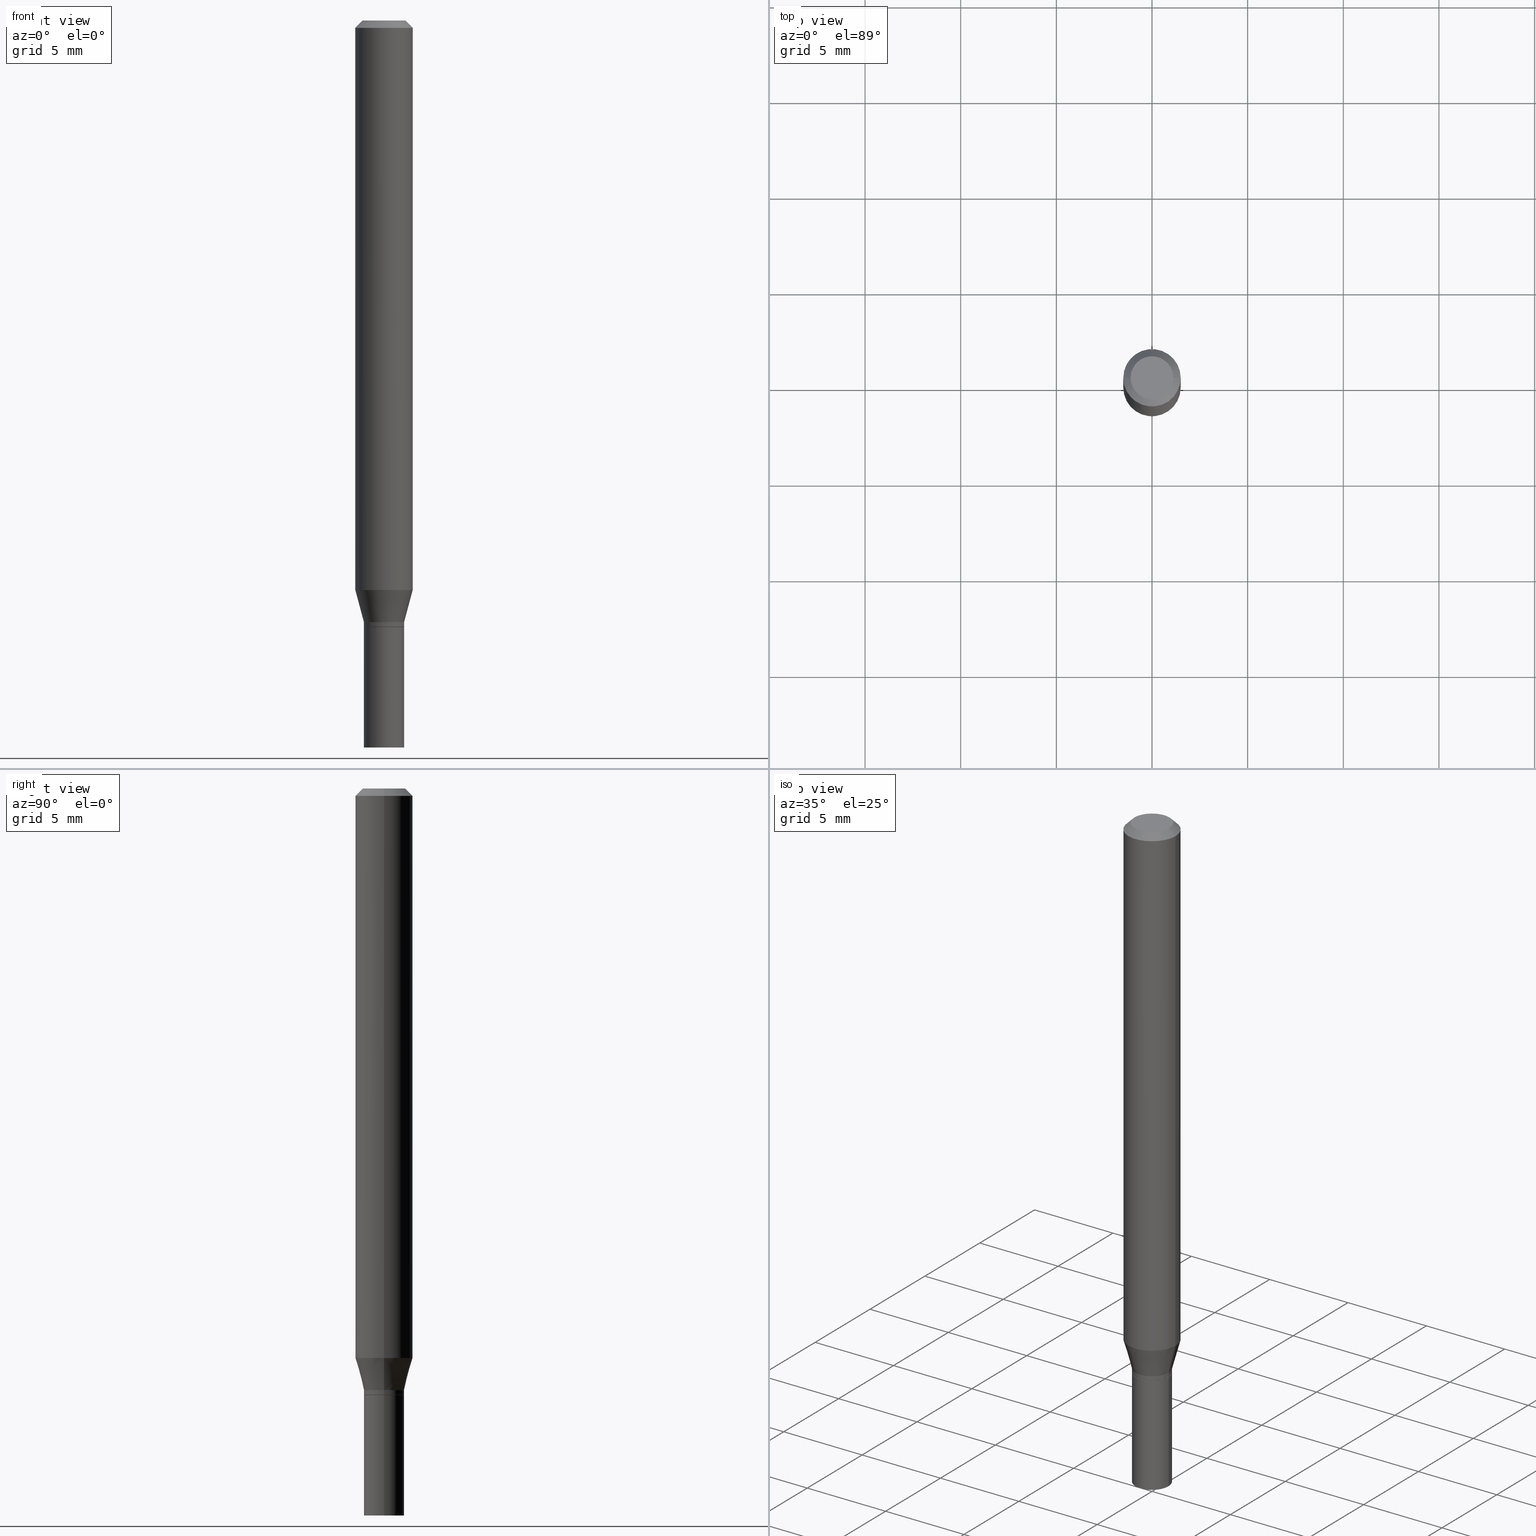
[diagram: canonical four-view strip — front | top / right | iso, engineering-drawing reading convention]
A machine part, canonical four-view strip (front | top / right | iso — engineering-drawing reading convention). The complete STEP part file that produces these views, byte-faithful:
ISO-10303-21;
HEADER;
FILE_DESCRIPTION (( 'STEP AP203' ),
    '1' );
FILE_NAME ('01842.STEP',
    '2024-03-20T01:56:46',
    ( '' ),
    ( '' ),
    'SwSTEP 2.0',
    'SolidWorks 2023',
    '' );
FILE_SCHEMA (( 'CONFIG_CONTROL_DESIGN' ));
ENDSEC;

DATA;
#1 = CALENDAR_DATE ( 2024, 19, 3 ) ;
#2 = DIRECTION ( 'NONE',  ( -2.445468806185136877E-29, 3.491481338843145188E-15, 1.000000000000000000 ) ) ;
#3 = DATE_AND_TIME ( #257, #39 ) ;
#4 = DIRECTION ( 'NONE',  ( 1.000000000000000000, -6.982962677686261189E-15, 0.000000000000000000 ) ) ;
#5 = PERSON_AND_ORGANIZATION ( #77, #251 ) ;
#6 = CARTESIAN_POINT ( 'NONE',  ( 0.05904999999999999832, -4.647161662000212105E-16, -0.01499999999999999944 ) ) ;
#7 = APPROVAL_PERSON_ORGANIZATION ( #5, #463, #44 ) ;
#8 = DIRECTION ( 'NONE',  ( -2.445468806185136597E-29, 3.491481338843145583E-15, 1.000000000000000000 ) ) ;
#9 = DIRECTION ( 'NONE',  ( -2.445468806185136597E-29, 3.491481338843145583E-15, 1.000000000000000000 ) ) ;
#10 = EDGE_CURVE ( 'NONE', #382, #405, #178, .T. ) ;
#11 = LINE ( 'NONE', #161, #203 ) ;
#12 = ORIENTED_EDGE ( 'NONE', *, *, #408, .T. ) ;
#13 = CIRCLE ( 'NONE', #225, 0.04134999999999965092 ) ;
#14 = DIRECTION ( 'NONE',  ( -2.445468806185136597E-29, 3.491481338843145583E-15, 1.000000000000000000 ) ) ;
#15 = UNCERTAINTY_MEASURE_WITH_UNIT (LENGTH_MEASURE( 1.000000000000000082E-05 ), #103, 'distance_accuracy_value', 'NONE');
#16 = EDGE_LOOP ( 'NONE', ( #172, #270 ) ) ;
#17 = DIRECTION ( 'NONE',  ( -2.445468806185136877E-29, 3.491481338843145188E-15, 1.000000000000000000 ) ) ;
#18 = ORIENTED_EDGE ( 'NONE', *, *, #231, .F. ) ;
#19 = DIRECTION ( 'NONE',  ( 2.445468806185136597E-29, -3.491481338843145583E-15, -1.000000000000000000 ) ) ;
#20 = ORIENTED_EDGE ( 'NONE', *, *, #268, .F. ) ;
#21 = AXIS2_PLACEMENT_3D ( 'NONE', #123, #159, #303 ) ;
#22 = CARTESIAN_POINT ( 'NONE',  ( 2.887455067223576124E-16, 0.04134999999999564718, -1.248100000000000209 ) ) ;
#23 = DIRECTION ( 'NONE',  ( -2.445468806185136877E-29, 3.491481338843145188E-15, 1.000000000000000000 ) ) ;
#24 = DIRECTION ( 'NONE',  ( 0.2588190451025206840, 1.565188264969626504E-15, 0.9659258262890682012 ) ) ;
#25 = EDGE_CURVE ( 'NONE', #162, #201, #293, .T. ) ;
#26 = ORIENTED_EDGE ( 'NONE', *, *, #310, .T. ) ;
#27 = CONICAL_SURFACE ( 'NONE', #46, 0.05904999999999999832, 0.7853981633974458365 ) ;
#28 = AXIS2_PLACEMENT_3D ( 'NONE', #353, #175, #238 ) ;
#29 = ORIENTED_EDGE ( 'NONE', *, *, #427, .F. ) ;
#30 = ADVANCED_FACE ( 'NONE', ( #349 ), #449, .T. ) ;
#31 = PERSON_AND_ORGANIZATION ( #77, #251 ) ;
#32 = CARTESIAN_POINT ( 'NONE',  ( -0.05904999999999999832, 3.599717260347268549E-16, -0.01499999999999999944 ) ) ;
#33 = EDGE_CURVE ( 'NONE', #136, #134, #428, .T. ) ;
#34 = COORDINATED_UNIVERSAL_TIME_OFFSET ( 5, 0, .BEHIND. ) ;
#35 = CARTESIAN_POINT ( 'NONE',  ( 3.668203209277705088E-31, -5.237222008264718399E-17, -0.01499999999999999944 ) ) ;
#36 = CIRCLE ( 'NONE', #418, 0.04134999999999965092 ) ;
#37 = AXIS2_PLACEMENT_3D ( 'NONE', #149, #181, #291 ) ;
#38 = CARTESIAN_POINT ( 'NONE',  ( 0.000000000000000000, 0.000000000000000000, 0.000000000000000000 ) ) ;
#39 = LOCAL_TIME ( 21, 56, 46.00000000000000000, #325 ) ;
#40 = PERSON_AND_ORGANIZATION ( #77, #251 ) ;
#41 = DIRECTION ( 'NONE',  ( -2.445468806185136597E-29, 3.491481338843145583E-15, 1.000000000000000000 ) ) ;
#42 = DATE_TIME_ROLE ( 'classification_date' ) ;
#43 = DIRECTION ( 'NONE',  ( -2.445468806185136597E-29, 3.491481338843145583E-15, 1.000000000000000000 ) ) ;
#44 = APPROVAL_ROLE ( '' ) ;
#45 = DIRECTION ( 'NONE',  ( -2.445468806185136597E-29, 3.491481338843145583E-15, 1.000000000000000000 ) ) ;
#46 = AXIS2_PLACEMENT_3D ( 'NONE', #413, #195, #126 ) ;
#47 = EDGE_CURVE ( 'NONE', #335, #136, #387, .T. ) ;
#48 = CARTESIAN_POINT ( 'NONE',  ( -1.820608976435806183E-45, 2.599347106975407252E-31, 7.444826005676619610E-17 ) ) ;
#49 = FACE_OUTER_BOUND ( 'NONE', #16, .T. ) ;
#50 = ORIENTED_EDGE ( 'NONE', *, *, #67, .T. ) ;
#51 = FACE_OUTER_BOUND ( 'NONE', #284, .T. ) ;
#52 = VERTEX_POINT ( 'NONE', #454 ) ;
#53 = AXIS2_PLACEMENT_3D ( 'NONE', #296, #45, #434 ) ;
#54 = LINE ( 'NONE', #448, #345 ) ;
#55 = ORIENTED_EDGE ( 'NONE', *, *, #433, .F. ) ;
#56 = DIRECTION ( 'NONE',  ( -2.445468806185136597E-29, 3.491481338843145583E-15, 1.000000000000000000 ) ) ;
#57 = ORIENTED_EDGE ( 'NONE', *, *, #322, .T. ) ;
#58 = CALENDAR_DATE ( 2024, 19, 3 ) ;
#59 = ORIENTED_EDGE ( 'NONE', *, *, #33, .F. ) ;
#60 = CONICAL_SURFACE ( 'NONE', #300, 0.04084999999999999742, 0.7853981633974739252 ) ;
#61 = APPLICATION_PROTOCOL_DEFINITION ( 'international standard', 'config_control_design', 1994, #72 ) ;
#62 = ORIENTED_EDGE ( 'NONE', *, *, #33, .T. ) ;
#63 = ADVANCED_FACE ( 'NONE', ( #176 ), #417, .T. ) ;
#64 = MECHANICAL_CONTEXT ( 'NONE', #72, 'mechanical' ) ;
#65 = VERTEX_POINT ( 'NONE', #432 ) ;
#66 = CYLINDRICAL_SURFACE ( 'NONE', #28, 0.04134999999999965786 ) ;
#67 = EDGE_CURVE ( 'NONE', #133, #65, #83, .T. ) ;
#68 = ORIENTED_EDGE ( 'NONE', *, *, #310, .F. ) ;
#69 = CIRCLE ( 'NONE', #130, 0.04084999999999999742 ) ;
#70 = APPROVAL_PERSON_ORGANIZATION ( #40, #112, #76 ) ;
#71 = ORIENTED_EDGE ( 'NONE', *, *, #116, .T. ) ;
#72 = APPLICATION_CONTEXT ( 'configuration controlled 3d designs of mechanical parts and assemblies' ) ;
#73 = PERSON_AND_ORGANIZATION_ROLE ( 'classification_officer' ) ;
#74 = EDGE_LOOP ( 'NONE', ( #164, #452 ) ) ;
#75 = CARTESIAN_POINT ( 'NONE',  ( -0.05904999999999999832, -3.672589732376084580E-15, -1.172042700706029450 ) ) ;
#76 = APPROVAL_ROLE ( '' ) ;
#77 = PERSON ( 'UNSPECIFIED', 'UNSPECIFIED', 'UNSPECIFIED', ('UNSPECIFIED'), ('UNSPECIFIED'), ('UNSPECIFIED') ) ;
#78 = CYLINDRICAL_SURFACE ( 'NONE', #233, 0.04134999999999965786 ) ;
#79 = EDGE_CURVE ( 'NONE', #335, #280, #327, .T. ) ;
#80 = APPROVAL_DATE_TIME ( #108, #112 ) ;
#81 = APPLICATION_CONTEXT ( 'configuration controlled 3d designs of mechanical parts and assemblies' ) ;
#82 = DIRECTION ( 'NONE',  ( 1.000000000000000000, -6.982962677686271444E-15, 0.000000000000000000 ) ) ;
#83 = LINE ( 'NONE', #326, #250 ) ;
#84 = ADVANCED_FACE ( 'NONE', ( #85 ), #320, .F. ) ;
#85 = FACE_OUTER_BOUND ( 'NONE', #339, .T. ) ;
#86 = PRODUCT_DEFINITION ( 'UNKNOWN', '', #301, #431 ) ;
#87 = CARTESIAN_POINT ( 'NONE',  ( 3.668203209277705088E-31, -5.237222008264718399E-17, -0.01499999999999999944 ) ) ;
#88 = ORIENTED_EDGE ( 'NONE', *, *, #228, .F. ) ;
#89 = LINE ( 'NONE', #232, #219 ) ;
#90 = ORIENTED_EDGE ( 'NONE', *, *, #244, .T. ) ;
#91 = CARTESIAN_POINT ( 'NONE',  ( 3.027734928937817340E-29, -4.322803045621698320E-15, -1.238099999999999756 ) ) ;
#92 = VECTOR ( 'NONE', #2, 39.37007874015748143 ) ;
#93 = AXIS2_PLACEMENT_3D ( 'NONE', #22, #167, #419 ) ;
#94 = CARTESIAN_POINT ( 'NONE',  ( 2.866193864093577193E-29, -4.092165217842424073E-15, -1.172042700706029450 ) ) ;
#95 = EDGE_LOOP ( 'NONE', ( #205, #102, #192, #20 ) ) ;
#96 = FACE_OUTER_BOUND ( 'NONE', #424, .T. ) ;
#97 = ORIENTED_EDGE ( 'NONE', *, *, #116, .F. ) ;
#98 = CARTESIAN_POINT ( 'NONE',  ( 3.027734928937817340E-29, -4.322803045621698320E-15, -1.238099999999999756 ) ) ;
#99 = CARTESIAN_POINT ( 'NONE',  ( 0.000000000000000000, 0.000000000000000000, 0.000000000000000000 ) ) ;
#100 = LOCAL_TIME ( 21, 56, 46.00000000000000000, #216 ) ;
#101 = AXIS2_PLACEMENT_3D ( 'NONE', #87, #19, #269 ) ;
#102 = ORIENTED_EDGE ( 'NONE', *, *, #360, .T. ) ;
#103 =( CONVERSION_BASED_UNIT ( 'INCH', #313 ) LENGTH_UNIT ( ) NAMED_UNIT ( #186 ) );
#104 = DIRECTION ( 'NONE',  ( 1.000000000000000000, -6.982962677686273021E-15, 0.000000000000000000 ) ) ;
#105 =( NAMED_UNIT ( * ) PLANE_ANGLE_UNIT ( ) SI_UNIT ( $, .RADIAN. ) );
#106 = PERSON_AND_ORGANIZATION_ROLE ( 'creator' ) ;
#107 = DIRECTION ( 'NONE',  ( -2.445468806185136877E-29, 3.491481338843145188E-15, 1.000000000000000000 ) ) ;
#108 = DATE_AND_TIME ( #1, #392 ) ;
#109 = DIRECTION ( 'NONE',  ( 1.000000000000000000, -6.982962677686266711E-15, 4.876176775795936353E-29 ) ) ;
#110 = DATE_AND_TIME ( #361, #100 ) ;
#111 = CARTESIAN_POINT ( 'NONE',  ( -0.04134999999999999787, -4.496852123789878797E-15, -1.496099999999999985 ) ) ;
#112 = APPROVAL ( #180, 'UNSPECIFIED' ) ;
#113 = CONICAL_SURFACE ( 'NONE', #101, 0.05904999999999999832, 0.7853981633974458365 ) ;
#114 = AXIS2_PLACEMENT_3D ( 'NONE', #98, #240, #281 ) ;
#115 = FACE_OUTER_BOUND ( 'NONE', #230, .T. ) ;
#116 = EDGE_CURVE ( 'NONE', #217, #405, #222, .T. ) ;
#117 = CARTESIAN_POINT ( 'NONE',  ( 3.052189616999668885E-29, -4.357717859010129969E-15, -1.248099999999999987 ) ) ;
#118 = EDGE_CURVE ( 'NONE', #134, #405, #299, .T. ) ;
#119 = DIRECTION ( 'NONE',  ( -2.445468806185136597E-29, 3.491481338843145583E-15, 1.000000000000000000 ) ) ;
#120 = CARTESIAN_POINT ( 'NONE',  ( 0.04134999999999966480, -4.611548552344022899E-15, -1.238099999999999756 ) ) ;
#121 = VECTOR ( 'NONE', #359, 39.37007874015748143 ) ;
#122 = ORIENTED_EDGE ( 'NONE', *, *, #191, .T. ) ;
#123 = CARTESIAN_POINT ( 'NONE',  ( 3.052189616999668885E-29, -4.357717859010129969E-15, -1.248099999999999987 ) ) ;
#124 = ORIENTED_EDGE ( 'NONE', *, *, #231, .T. ) ;
#125 = ADVANCED_FACE ( 'NONE', ( #115 ), #60, .T. ) ;
#126 = DIRECTION ( 'NONE',  ( -1.000000000000000000, 6.982962677686266711E-15, 0.000000000000000000 ) ) ;
#127 = ORIENTED_EDGE ( 'NONE', *, *, #10, .F. ) ;
#128 = CARTESIAN_POINT ( 'NONE',  ( -0.04134999999999999787, -4.496852123789878797E-15, -1.248099999999999987 ) ) ;
#129 = ORIENTED_EDGE ( 'NONE', *, *, #386, .T. ) ;
#130 = AXIS2_PLACEMENT_3D ( 'NONE', #220, #41, #4 ) ;
#131 = VECTOR ( 'NONE', #17, 39.37007874015748143 ) ;
#132 = CARTESIAN_POINT ( 'NONE',  ( 2.866193864093577193E-29, -4.092165217842424073E-15, -1.172042700706029450 ) ) ;
#133 = VERTEX_POINT ( 'NONE', #368 ) ;
#134 = VERTEX_POINT ( 'NONE', #6 ) ;
#135 = FACE_OUTER_BOUND ( 'NONE', #372, .T. ) ;
#136 = VERTEX_POINT ( 'NONE', #292 ) ;
#137 = DIRECTION ( 'NONE',  ( -2.445468806185136597E-29, 3.491481338843145583E-15, 1.000000000000000000 ) ) ;
#138 = EDGE_LOOP ( 'NONE', ( #241, #420, #26, #245 ) ) ;
#139 = CC_DESIGN_PERSON_AND_ORGANIZATION_ASSIGNMENT ( #248, #214, ( #221 ) ) ;
#140 = MANIFOLD_SOLID_BREP ( 'Body-Move/Copy2[1]', #435 ) ;
#141 = CARTESIAN_POINT ( 'NONE',  ( -1.820608976435806183E-45, 2.599347106975407252E-31, 7.444826005676619610E-17 ) ) ;
#142 = ORIENTED_EDGE ( 'NONE', *, *, #328, .F. ) ;
#143 = DIRECTION ( 'NONE',  ( -2.445468806185136597E-29, 3.491481338843145583E-15, 1.000000000000000000 ) ) ;
#144 = CIRCLE ( 'NONE', #403, 0.04404999999999999888 ) ;
#145 = DIRECTION ( 'NONE',  ( 1.000000000000000000, -6.982962677686266711E-15, 0.000000000000000000 ) ) ;
#146 = MANIFOLD_SOLID_BREP ( 'Body-Move/Copy2[2]', #288 ) ;
#147 = DIRECTION ( 'NONE',  ( -0.7071067811865656694, 7.493145998870420424E-15, 0.7071067811865294761 ) ) ;
#148 = ADVANCED_FACE ( 'NONE', ( #290 ), #465, .T. ) ;
#149 = CARTESIAN_POINT ( 'NONE',  ( 3.052189616999668325E-29, -4.357717859010129180E-15, -1.248099999999999765 ) ) ;
#150 = PRODUCT_DEFINITION_SHAPE ( 'NONE', 'NONE',  #86 ) ;
#151 = AXIS2_PLACEMENT_3D ( 'NONE', #362, #119, #109 ) ;
#152 = PERSON_AND_ORGANIZATION_ROLE ( 'creator' ) ;
#153 = CONICAL_SURFACE ( 'NONE', #114, 0.04134999999999966480, 0.2617993877991494078 ) ;
#154 = DIRECTION ( 'NONE',  ( -2.445468806185136597E-29, 3.491481338843145583E-15, 1.000000000000000000 ) ) ;
#155 = FACE_OUTER_BOUND ( 'NONE', #74, .T. ) ;
#156 = DIRECTION ( 'NONE',  ( -2.445468806185136877E-29, 3.491481338843145188E-15, 1.000000000000000000 ) ) ;
#157 = VECTOR ( 'NONE', #24, 39.37007874015748854 ) ;
#158 = DIRECTION ( 'NONE',  ( -2.445468806185136597E-29, 3.491481338843145583E-15, 1.000000000000000000 ) ) ;
#159 = DIRECTION ( 'NONE',  ( -2.445468806185136597E-29, 3.491481338843145583E-15, 1.000000000000000000 ) ) ;
#160 = ORIENTED_EDGE ( 'NONE', *, *, #191, .F. ) ;
#161 = CARTESIAN_POINT ( 'NONE',  ( -0.04134999999999965786, 2.938094212367989958E-16, -2.033979659820386636E-30 ) ) ;
#162 = VERTEX_POINT ( 'NONE', #261 ) ;
#163 = CARTESIAN_POINT ( 'NONE',  ( -0.04134999999999966480, -3.850791678380491533E-15, -1.238099999999999756 ) ) ;
#164 = ORIENTED_EDGE ( 'NONE', *, *, #25, .F. ) ;
#165 = AXIS2_PLACEMENT_3D ( 'NONE', #297, #227, #395 ) ;
#166 = AXIS2_PLACEMENT_3D ( 'NONE', #277, #137, #346 ) ;
#167 = DIRECTION ( 'NONE',  ( 2.438088387897960049E-29, -3.491481338843145188E-15, -1.000000000000000000 ) ) ;
#168 = CARTESIAN_POINT ( 'NONE',  ( 0.04134999999999966480, -4.611548552344022899E-15, -1.238099999999999756 ) ) ;
#169 = ADVANCED_FACE ( 'NONE', ( #401 ), #224, .T. ) ;
#170 = DIRECTION ( 'NONE',  ( -2.445468806185136597E-29, 3.491481338843145583E-15, 1.000000000000000000 ) ) ;
#171 = CARTESIAN_POINT ( 'NONE',  ( 0.05904999999999999832, -4.574846268510561447E-16, -0.01499999999999999944 ) ) ;
#172 = ORIENTED_EDGE ( 'NONE', *, *, #427, .T. ) ;
#173 = CIRCLE ( 'NONE', #307, 0.04134999999999999787 ) ;
#174 = VECTOR ( 'NONE', #210, 39.37007874015748143 ) ;
#175 = DIRECTION ( 'NONE',  ( -2.445468806185136597E-29, 3.491481338843145583E-15, 1.000000000000000000 ) ) ;
#176 = FACE_OUTER_BOUND ( 'NONE', #211, .T. ) ;
#177 = FACE_OUTER_BOUND ( 'NONE', #208, .T. ) ;
#178 = LINE ( 'NONE', #32, #121 ) ;
#179 = EDGE_CURVE ( 'NONE', #280, #335, #242, .T. ) ;
#180 = APPROVAL_STATUS ( 'not_yet_approved' ) ;
#181 = DIRECTION ( 'NONE',  ( -2.438088387897960049E-29, 3.491481338843145188E-15, 1.000000000000000000 ) ) ;
#182 = CARTESIAN_POINT ( 'NONE',  ( 3.668203209277705088E-31, -5.237222008264718399E-17, -0.01499999999999999944 ) ) ;
#183 = CARTESIAN_POINT ( 'NONE',  ( -0.05904999999999999832, 4.195754854663391478E-16, -2.904631170795521892E-30 ) ) ;
#184 = ADVANCED_FACE ( 'NONE', ( #189 ), #78, .T. ) ;
#185 = DIRECTION ( 'NONE',  ( 1.000000000000000000, -6.982962677686261189E-15, 0.000000000000000000 ) ) ;
#186 = DIMENSIONAL_EXPONENTS ( 1.000000000000000000, 0.000000000000000000, 0.000000000000000000, 0.000000000000000000, 0.000000000000000000, 0.000000000000000000, 0.000000000000000000 ) ;
#187 = APPROVAL_DATE_TIME ( #200, #459 ) ;
#188 = LOCAL_TIME ( 21, 56, 46.00000000000000000, #34 ) ;
#189 = FACE_OUTER_BOUND ( 'NONE', #95, .T. ) ;
#190 = CARTESIAN_POINT ( 'NONE',  ( 3.075995059520799729E-16, 0.04404999999999999888, -1.165756229476574492E-16 ) ) ;
#191 = EDGE_CURVE ( 'NONE', #239, #374, #173, .T. ) ;
#192 = ORIENTED_EDGE ( 'NONE', *, *, #79, .F. ) ;
#193 = CC_DESIGN_DATE_AND_TIME_ASSIGNMENT ( #3, #223, ( #86 ) ) ;
#194 = AXIS2_PLACEMENT_3D ( 'NONE', #190, #370, #235 ) ;
#195 = DIRECTION ( 'NONE',  ( 2.445468806185136597E-29, -3.491481338843145583E-15, -1.000000000000000000 ) ) ;
#196 = EDGE_LOOP ( 'NONE', ( #97, #129, #62, #88 ) ) ;
#197 = DIRECTION ( 'NONE',  ( 1.000000000000000000, -6.982962677686261189E-15, 0.000000000000000000 ) ) ;
#198 = VERTEX_POINT ( 'NONE', #256 ) ;
#199 = CARTESIAN_POINT ( 'NONE',  ( 3.050966882596576644E-29, -4.355972118340708465E-15, -1.247600000000000042 ) ) ;
#200 = DATE_AND_TIME ( #58, #450 ) ;
#201 = VERTEX_POINT ( 'NONE', #111 ) ;
#202 = VECTOR ( 'NONE', #107, 39.37007874015748143 ) ;
#203 = VECTOR ( 'NONE', #156, 39.37007874015748143 ) ;
#204 = DIRECTION ( 'NONE',  ( -2.445468806185136597E-29, 3.491481338843145583E-15, 1.000000000000000000 ) ) ;
#205 = ORIENTED_EDGE ( 'NONE', *, *, #285, .T. ) ;
#206 = ADVANCED_FACE ( 'NONE', ( #155 ), #258, .F. ) ;
#207 = CARTESIAN_POINT ( 'NONE',  ( 0.000000000000000000, 0.000000000000000000, 0.000000000000000000 ) ) ;
#208 = EDGE_LOOP ( 'NONE', ( #389, #90, #311, #458 ) ) ;
#209 = ADVANCED_BREP_SHAPE_REPRESENTATION ( '01842', ( #140, #146, #336 ), #355 ) ;
#210 = DIRECTION ( 'NONE',  ( 0.7071067811865457964, -7.319954787623249734E-15, -0.7071067811865492381 ) ) ;
#211 = EDGE_LOOP ( 'NONE', ( #391, #282, #415, #160 ) ) ;
#212 = AXIS2_PLACEMENT_3D ( 'NONE', #99, #170, #312 ) ;
#213 = AXIS2_PLACEMENT_3D ( 'NONE', #229, #451, #371 ) ;
#214 = PERSON_AND_ORGANIZATION_ROLE ( 'design_owner' ) ;
#215 = VERTEX_POINT ( 'NONE', #397 ) ;
#216 = COORDINATED_UNIVERSAL_TIME_OFFSET ( 5, 0, .BEHIND. ) ;
#217 = VERTEX_POINT ( 'NONE', #75 ) ;
#218 = CARTESIAN_POINT ( 'NONE',  ( 0.000000000000000000, 0.000000000000000000, 0.000000000000000000 ) ) ;
#219 = VECTOR ( 'NONE', #443, 39.37007874015748143 ) ;
#220 = CARTESIAN_POINT ( 'NONE',  ( 3.052189616999668325E-29, -4.357717859010129180E-15, -1.248099999999999765 ) ) ;
#221 = PRODUCT ( '01842', '01842', '', ( #64 ) ) ;
#222 = LINE ( 'NONE', #183, #92 ) ;
#223 = DATE_TIME_ROLE ( 'creation_date' ) ;
#224 = CYLINDRICAL_SURFACE ( 'NONE', #369, 0.05904999999999999832 ) ;
#225 = AXIS2_PLACEMENT_3D ( 'NONE', #199, #14, #441 ) ;
#226 = CC_DESIGN_APPROVAL ( #112, ( #321 ) ) ;
#227 = DIRECTION ( 'NONE',  ( -2.438088387897960049E-29, 3.491481338843145188E-15, 1.000000000000000000 ) ) ;
#228 = EDGE_CURVE ( 'NONE', #405, #134, #410, .T. ) ;
#229 = CARTESIAN_POINT ( 'NONE',  ( 3.658665880933582389E-29, -5.223605231043229660E-15, -1.496099999999999985 ) ) ;
#230 = EDGE_LOOP ( 'NONE', ( #124, #50, #378, #68 ) ) ;
#231 = EDGE_CURVE ( 'NONE', #198, #133, #69, .T. ) ;
#232 = CARTESIAN_POINT ( 'NONE',  ( 0.04134999999999965786, -2.887455067223247268E-16, 2.016299096791602820E-30 ) ) ;
#233 = AXIS2_PLACEMENT_3D ( 'NONE', #218, #439, #263 ) ;
#234 = ADVANCED_FACE ( 'NONE', ( #400 ), #27, .T. ) ;
#235 = DIRECTION ( 'NONE',  ( -1.000000000000000000, 6.982962677686265922E-15, -4.876176775795935793E-29 ) ) ;
#236 = LINE ( 'NONE', #379, #376 ) ;
#237 = EDGE_LOOP ( 'NONE', ( #55, #29, #278, #407 ) ) ;
#238 = DIRECTION ( 'NONE',  ( 1.000000000000000000, -6.982962677686266711E-15, 4.876176775795935793E-29 ) ) ;
#239 = VERTEX_POINT ( 'NONE', #128 ) ;
#240 = DIRECTION ( 'NONE',  ( -2.445468806185136597E-29, 3.491481338843145583E-15, 1.000000000000000000 ) ) ;
#241 = ORIENTED_EDGE ( 'NONE', *, *, #67, .F. ) ;
#242 = CIRCLE ( 'NONE', #53, 0.04134999999999966480 ) ;
#243 = CC_DESIGN_APPROVAL ( #459, ( #86 ) ) ;
#244 = EDGE_CURVE ( 'NONE', #65, #215, #36, .T. ) ;
#245 = ORIENTED_EDGE ( 'NONE', *, *, #244, .F. ) ;
#246 = FACE_OUTER_BOUND ( 'NONE', #455, .T. ) ;
#247 = DIRECTION ( 'NONE',  ( 1.000000000000000000, -6.982962677686261189E-15, 0.000000000000000000 ) ) ;
#248 = PERSON_AND_ORGANIZATION ( #77, #251 ) ;
#249 = ORIENTED_EDGE ( 'NONE', *, *, #351, .T. ) ;
#250 = VECTOR ( 'NONE', #147, 39.37007874015748143 ) ;
#251 = ORGANIZATION ( 'UNSPECIFIED', 'UNSPECIFIED', '' ) ;
#252 = SECURITY_CLASSIFICATION_LEVEL ( 'unclassified' ) ;
#253 = DIRECTION ( 'NONE',  ( -2.445468806185136597E-29, 3.491481338843145583E-15, 1.000000000000000000 ) ) ;
#254 = CC_DESIGN_PERSON_AND_ORGANIZATION_ASSIGNMENT ( #319, #106, ( #86 ) ) ;
#255 = SHAPE_DEFINITION_REPRESENTATION ( #150, #209 ) ;
#256 = CARTESIAN_POINT ( 'NONE',  ( 0.04084999999999999742, -4.642971884393613118E-15, -1.248099999999999765 ) ) ;
#257 = CALENDAR_DATE ( 2024, 19, 3 ) ;
#258 = PLANE ( 'NONE',  #165 ) ;
#259 = CIRCLE ( 'NONE', #411, 0.04084999999999999742 ) ;
#260 = CC_DESIGN_PERSON_AND_ORGANIZATION_ASSIGNMENT ( #396, #73, ( #321 ) ) ;
#261 = CARTESIAN_POINT ( 'NONE',  ( 0.04134999999999999787, -5.512350737765556605E-15, -1.496099999999999985 ) ) ;
#262 = COORDINATED_UNIVERSAL_TIME_OFFSET ( 5, 0, .BEHIND. ) ;
#263 = DIRECTION ( 'NONE',  ( 1.000000000000000000, -6.982962677686266711E-15, 4.876176775795935793E-29 ) ) ;
#264 = FACE_OUTER_BOUND ( 'NONE', #343, .T. ) ;
#265 = ORIENTED_EDGE ( 'NONE', *, *, #322, .F. ) ;
#266 = DIRECTION ( 'NONE',  ( -2.445468806185136597E-29, 3.491481338843145583E-15, 1.000000000000000000 ) ) ;
#267 = ORIENTED_EDGE ( 'NONE', *, *, #47, .T. ) ;
#268 = EDGE_CURVE ( 'NONE', #215, #335, #89, .T. ) ;
#269 = DIRECTION ( 'NONE',  ( -1.000000000000000000, 6.982962677686266711E-15, 0.000000000000000000 ) ) ;
#270 = ORIENTED_EDGE ( 'NONE', *, *, #328, .T. ) ;
#271 = CC_DESIGN_PERSON_AND_ORGANIZATION_ASSIGNMENT ( #393, #329, ( #301 ) ) ;
#272 = CIRCLE ( 'NONE', #21, 0.04134999999999999787 ) ;
#273 = CARTESIAN_POINT ( 'NONE',  ( 0.04134999999999999787, -4.646463365732457703E-15, -1.248099999999999987 ) ) ;
#274 = CC_DESIGN_APPROVAL ( #463, ( #301 ) ) ;
#275 = DIRECTION ( 'NONE',  ( 1.000000000000000000, -6.982962677686265133E-15, 0.000000000000000000 ) ) ;
#276 = ORIENTED_EDGE ( 'NONE', *, *, #433, .T. ) ;
#277 = CARTESIAN_POINT ( 'NONE',  ( 0.000000000000000000, 0.000000000000000000, 0.000000000000000000 ) ) ;
#278 = ORIENTED_EDGE ( 'NONE', *, *, #10, .T. ) ;
#279 =( NAMED_UNIT ( * ) SI_UNIT ( $, .STERADIAN. ) SOLID_ANGLE_UNIT ( ) );
#280 = VERTEX_POINT ( 'NONE', #163 ) ;
#281 = DIRECTION ( 'NONE',  ( 1.000000000000000000, -6.982962677686271444E-15, 0.000000000000000000 ) ) ;
#282 = ORIENTED_EDGE ( 'NONE', *, *, #373, .T. ) ;
#283 = ADVANCED_FACE ( 'NONE', ( #51 ), #398, .T. ) ;
#284 = EDGE_LOOP ( 'NONE', ( #380, #12, #394, #422 ) ) ;
#285 = EDGE_CURVE ( 'NONE', #215, #65, #13, .T. ) ;
#286 = APPROVAL_ROLE ( '' ) ;
#287 = ORIENTED_EDGE ( 'NONE', *, *, #25, .T. ) ;
#288 = CLOSED_SHELL ( 'NONE', ( #184, #125, #338, #169, #283, #442, #148, #234, #331, #84, #30, #444 ) ) ;
#289 = PERSON_AND_ORGANIZATION ( #77, #251 ) ;
#290 = FACE_OUTER_BOUND ( 'NONE', #196, .T. ) ;
#291 = DIRECTION ( 'NONE',  ( 1.000000000000000000, -6.982962677686265922E-15, 4.876176775795935793E-29 ) ) ;
#292 = CARTESIAN_POINT ( 'NONE',  ( 0.05904999999999999832, -4.504509163959798204E-15, -1.172042700706029450 ) ) ;
#293 = CIRCLE ( 'NONE', #390, 0.04134999999999999787 ) ;
#294 = VECTOR ( 'NONE', #23, 39.37007874015748143 ) ;
#295 = CALENDAR_DATE ( 2024, 19, 3 ) ;
#296 = CARTESIAN_POINT ( 'NONE',  ( 3.027734928937817340E-29, -4.322803045621698320E-15, -1.238099999999999756 ) ) ;
#297 = CARTESIAN_POINT ( 'NONE',  ( 3.577647911566500614E-29, -5.339627574433336753E-15, -1.496099999999999985 ) ) ;
#298 = DIRECTION ( 'NONE',  ( 1.000000000000000000, -6.982962677686271444E-15, 0.000000000000000000 ) ) ;
#299 = CIRCLE ( 'NONE', #363, 0.05904999999999999832 ) ;
#300 = AXIS2_PLACEMENT_3D ( 'NONE', #436, #43, #185 ) ;
#301 = PRODUCT_DEFINITION_FORMATION_WITH_SPECIFIED_SOURCE ( 'ANY', '', #221, .NOT_KNOWN. ) ;
#302 = CARTESIAN_POINT ( 'NONE',  ( -0.04404999999999999888, 3.337856159934035125E-16, 7.444826005676395277E-17 ) ) ;
#303 = DIRECTION ( 'NONE',  ( 1.000000000000000000, -6.982962677686273021E-15, 0.000000000000000000 ) ) ;
#304 = PRODUCT_RELATED_PRODUCT_CATEGORY ( 'detail', '', ( #221 ) ) ;
#305 = DIRECTION ( 'NONE',  ( 1.000000000000000000, -6.982962677686265922E-15, 4.888540261209747396E-29 ) ) ;
#306 = ORIENTED_EDGE ( 'NONE', *, *, #447, .F. ) ;
#307 = AXIS2_PLACEMENT_3D ( 'NONE', #117, #8, #324 ) ;
#308 = DIRECTION ( 'NONE',  ( 0.7071067811865656694, -2.468850131082446387E-15, 0.7071067811865294761 ) ) ;
#309 = APPROVAL_PERSON_ORGANIZATION ( #31, #459, #286 ) ;
#310 = EDGE_CURVE ( 'NONE', #198, #215, #54, .T. ) ;
#311 = ORIENTED_EDGE ( 'NONE', *, *, #268, .T. ) ;
#312 = DIRECTION ( 'NONE',  ( 1.000000000000000000, -6.982962677686267499E-15, 4.876176775795936353E-29 ) ) ;
#313 = LENGTH_MEASURE_WITH_UNIT ( LENGTH_MEASURE( 0.02539999999999999897 ), #381 );
#314 = AXIS2_PLACEMENT_3D ( 'NONE', #462, #143, #247 ) ;
#315 = ORIENTED_EDGE ( 'NONE', *, *, #179, .T. ) ;
#316 = ORIENTED_EDGE ( 'NONE', *, *, #386, .F. ) ;
#317 = APPROVAL_STATUS ( 'not_yet_approved' ) ;
#318 = CARTESIAN_POINT ( 'NONE',  ( 3.658665880933582389E-29, -5.223605231043229660E-15, -1.496099999999999985 ) ) ;
#319 = PERSON_AND_ORGANIZATION ( #77, #251 ) ;
#320 = PLANE ( 'NONE',  #37 ) ;
#321 = SECURITY_CLASSIFICATION ( '', '', #252 ) ;
#322 = EDGE_CURVE ( 'NONE', #374, #239, #272, .T. ) ;
#323 = DIRECTION ( 'NONE',  ( 1.000000000000000000, -6.982962677686266711E-15, 0.000000000000000000 ) ) ;
#324 = DIRECTION ( 'NONE',  ( 1.000000000000000000, -6.982962677686273021E-15, 0.000000000000000000 ) ) ;
#325 = COORDINATED_UNIVERSAL_TIME_OFFSET ( 5, 0, .BEHIND. ) ;
#326 = CARTESIAN_POINT ( 'NONE',  ( -0.04084999999999999742, -4.067461151452128667E-15, -1.248099999999999765 ) ) ;
#327 = CIRCLE ( 'NONE', #375, 0.04134999999999966480 ) ;
#328 = EDGE_CURVE ( 'NONE', #52, #382, #144, .T. ) ;
#329 = PERSON_AND_ORGANIZATION_ROLE ( 'design_supplier' ) ;
#330 = CARTESIAN_POINT ( 'NONE',  ( 3.027734928937817340E-29, -4.322803045621698320E-15, -1.238099999999999756 ) ) ;
#331 = ADVANCED_FACE ( 'NONE', ( #49 ), #334, .F. ) ;
#332 = DIRECTION ( 'NONE',  ( -2.445468806185136597E-29, 3.491481338843145583E-15, 1.000000000000000000 ) ) ;
#333 = EDGE_CURVE ( 'NONE', #136, #217, #464, .T. ) ;
#334 = PLANE ( 'NONE',  #194 ) ;
#335 = VERTEX_POINT ( 'NONE', #120 ) ;
#336 = AXIS2_PLACEMENT_3D ( 'NONE', #207, #384, #423 ) ;
#337 = DIRECTION ( 'NONE',  ( 1.000000000000000000, -6.982962677686261977E-15, 0.000000000000000000 ) ) ;
#338 = ADVANCED_FACE ( 'NONE', ( #264 ), #113, .T. ) ;
#339 = EDGE_LOOP ( 'NONE', ( #18, #445 ) ) ;
#340 = LINE ( 'NONE', #404, #131 ) ;
#341 = ORIENTED_EDGE ( 'NONE', *, *, #118, .T. ) ;
#342 = DIRECTION ( 'NONE',  ( 1.000000000000000000, -6.982962677686265133E-15, 0.000000000000000000 ) ) ;
#343 = EDGE_LOOP ( 'NONE', ( #142, #276, #341, #127 ) ) ;
#344 = EDGE_CURVE ( 'NONE', #133, #198, #259, .T. ) ;
#345 = VECTOR ( 'NONE', #308, 39.37007874015748143 ) ;
#346 = DIRECTION ( 'NONE',  ( 1.000000000000000000, -6.982962677686267499E-15, 4.876176775795936353E-29 ) ) ;
#347 = CC_DESIGN_DATE_AND_TIME_ASSIGNMENT ( #110, #42, ( #321 ) ) ;
#348 = CARTESIAN_POINT ( 'NONE',  ( 0.04134999999999999787, -2.887455067223271427E-16, 2.016299096791619635E-30 ) ) ;
#349 = FACE_OUTER_BOUND ( 'NONE', #138, .T. ) ;
#350 = DIRECTION ( 'NONE',  ( 1.000000000000000000, -6.982962677686265922E-15, 4.888540261209747396E-29 ) ) ;
#351 = EDGE_CURVE ( 'NONE', #201, #239, #340, .T. ) ;
#352 = ORIENTED_EDGE ( 'NONE', *, *, #118, .F. ) ;
#353 = CARTESIAN_POINT ( 'NONE',  ( 0.000000000000000000, 0.000000000000000000, 0.000000000000000000 ) ) ;
#354 = ORIENTED_EDGE ( 'NONE', *, *, #333, .T. ) ;
#355 =( GEOMETRIC_REPRESENTATION_CONTEXT ( 3 ) GLOBAL_UNCERTAINTY_ASSIGNED_CONTEXT ( ( #15 ) ) GLOBAL_UNIT_ASSIGNED_CONTEXT ( ( #103, #105, #279 ) ) REPRESENTATION_CONTEXT ( 'NONE', 'WORKASPACE' ) );
#356 = APPLICATION_PROTOCOL_DEFINITION ( 'international standard', 'config_control_design', 1994, #81 ) ;
#357 = EDGE_LOOP ( 'NONE', ( #354, #71, #352, #59 ) ) ;
#358 = APPROVAL_STATUS ( 'not_yet_approved' ) ;
#359 = DIRECTION ( 'NONE',  ( -0.7071067811865457964, 2.468850131082238917E-15, -0.7071067811865492381 ) ) ;
#360 = EDGE_CURVE ( 'NONE', #65, #280, #11, .T. ) ;
#361 = CALENDAR_DATE ( 2024, 19, 3 ) ;
#362 = CARTESIAN_POINT ( 'NONE',  ( 0.000000000000000000, 0.000000000000000000, 0.000000000000000000 ) ) ;
#363 = AXIS2_PLACEMENT_3D ( 'NONE', #35, #367, #145 ) ;
#364 = CIRCLE ( 'NONE', #213, 0.04134999999999999787 ) ;
#365 = CC_DESIGN_SECURITY_CLASSIFICATION ( #321, ( #301 ) ) ;
#366 = DIRECTION ( 'NONE',  ( -2.445468806185136597E-29, 3.491481338843145583E-15, 1.000000000000000000 ) ) ;
#367 = DIRECTION ( 'NONE',  ( -2.445468806185136597E-29, 3.491481338843145583E-15, 1.000000000000000000 ) ) ;
#368 = CARTESIAN_POINT ( 'NONE',  ( -0.04084999999999999742, -4.064811924278019044E-15, -1.248099999999999765 ) ) ;
#369 = AXIS2_PLACEMENT_3D ( 'NONE', #38, #154, #440 ) ;
#370 = DIRECTION ( 'NONE',  ( 2.438088387897960049E-29, -3.491481338843145188E-15, -1.000000000000000000 ) ) ;
#371 = DIRECTION ( 'NONE',  ( 1.000000000000000000, -6.982962677686273021E-15, 0.000000000000000000 ) ) ;
#372 = EDGE_LOOP ( 'NONE', ( #460, #315, #267, #316 ) ) ;
#373 = EDGE_CURVE ( 'NONE', #201, #162, #364, .T. ) ;
#374 = VERTEX_POINT ( 'NONE', #273 ) ;
#375 = AXIS2_PLACEMENT_3D ( 'NONE', #330, #402, #82 ) ;
#376 = VECTOR ( 'NONE', #414, 39.37007874015748854 ) ;
#377 = CARTESIAN_POINT ( 'NONE',  ( 3.052189616999668325E-29, -4.357717859010129180E-15, -1.248099999999999765 ) ) ;
#378 = ORIENTED_EDGE ( 'NONE', *, *, #285, .F. ) ;
#379 = CARTESIAN_POINT ( 'NONE',  ( -0.04134999999999966480, -4.028993624384898486E-15, -1.238099999999999756 ) ) ;
#380 = ORIENTED_EDGE ( 'NONE', *, *, #79, .T. ) ;
#381 =( LENGTH_UNIT ( ) NAMED_UNIT ( * ) SI_UNIT ( $, .METRE. ) );
#382 = VERTEX_POINT ( 'NONE', #302 ) ;
#383 = AXIS2_PLACEMENT_3D ( 'NONE', #182, #366, #323 ) ;
#384 = DIRECTION ( 'NONE',  ( 0.000000000000000000, 0.000000000000000000, 1.000000000000000000 ) ) ;
#385 = CARTESIAN_POINT ( 'NONE',  ( 0.05904999999999999832, -4.123439461173740327E-16, 2.879382386107500220E-30 ) ) ;
#386 = EDGE_CURVE ( 'NONE', #217, #136, #438, .T. ) ;
#387 = LINE ( 'NONE', #168, #157 ) ;
#388 = CC_DESIGN_PERSON_AND_ORGANIZATION_ASSIGNMENT ( #289, #152, ( #301 ) ) ;
#389 = ORIENTED_EDGE ( 'NONE', *, *, #360, .F. ) ;
#390 = AXIS2_PLACEMENT_3D ( 'NONE', #318, #253, #104 ) ;
#391 = ORIENTED_EDGE ( 'NONE', *, *, #351, .F. ) ;
#392 = LOCAL_TIME ( 21, 56, 46.00000000000000000, #262 ) ;
#393 = PERSON_AND_ORGANIZATION ( #77, #251 ) ;
#394 = ORIENTED_EDGE ( 'NONE', *, *, #333, .F. ) ;
#395 = DIRECTION ( 'NONE',  ( 1.000000000000000000, -6.982962677686265922E-15, 4.876176775795935793E-29 ) ) ;
#396 = PERSON_AND_ORGANIZATION ( #77, #251 ) ;
#397 = CARTESIAN_POINT ( 'NONE',  ( 0.04134999999999965092, -4.644717625063033044E-15, -1.247600000000000042 ) ) ;
#398 = CONICAL_SURFACE ( 'NONE', #426, 0.04134999999999966480, 0.2617993877991494078 ) ;
#399 = DATE_AND_TIME ( #295, #188 ) ;
#400 = FACE_OUTER_BOUND ( 'NONE', #237, .T. ) ;
#401 = FACE_OUTER_BOUND ( 'NONE', #357, .T. ) ;
#402 = DIRECTION ( 'NONE',  ( -2.445468806185136597E-29, 3.491481338843145583E-15, 1.000000000000000000 ) ) ;
#403 = AXIS2_PLACEMENT_3D ( 'NONE', #48, #158, #305 ) ;
#404 = CARTESIAN_POINT ( 'NONE',  ( -0.04134999999999999787, 2.938094212368014117E-16, -2.033979659820403452E-30 ) ) ;
#405 = VERTEX_POINT ( 'NONE', #406 ) ;
#406 = CARTESIAN_POINT ( 'NONE',  ( -0.05904999999999999832, -1.652693233496196478E-15, -0.01499999999999999944 ) ) ;
#407 = ORIENTED_EDGE ( 'NONE', *, *, #228, .T. ) ;
#408 = EDGE_CURVE ( 'NONE', #280, #217, #236, .T. ) ;
#409 = CARTESIAN_POINT ( 'NONE',  ( 3.050966882596576644E-29, -4.355972118340708465E-15, -1.247600000000000042 ) ) ;
#410 = CIRCLE ( 'NONE', #383, 0.05904999999999999832 ) ;
#411 = AXIS2_PLACEMENT_3D ( 'NONE', #377, #332, #197 ) ;
#412 = ADVANCED_FACE ( 'NONE', ( #96 ), #416, .T. ) ;
#413 = CARTESIAN_POINT ( 'NONE',  ( 3.668203209277705088E-31, -5.237222008264718399E-17, -0.01499999999999999944 ) ) ;
#414 = DIRECTION ( 'NONE',  ( -0.2588190451025206840, 5.211531920934545520E-15, 0.9659258262890682012 ) ) ;
#415 = ORIENTED_EDGE ( 'NONE', *, *, #447, .T. ) ;
#416 = CYLINDRICAL_SURFACE ( 'NONE', #166, 0.04134999999999999787 ) ;
#417 = CYLINDRICAL_SURFACE ( 'NONE', #212, 0.04134999999999999787 ) ;
#418 = AXIS2_PLACEMENT_3D ( 'NONE', #409, #9, #337 ) ;
#419 = DIRECTION ( 'NONE',  ( -1.000000000000000000, 6.982962677686265922E-15, -4.876176775795935793E-29 ) ) ;
#420 = ORIENTED_EDGE ( 'NONE', *, *, #344, .T. ) ;
#421 = PLANE ( 'NONE',  #93 ) ;
#422 = ORIENTED_EDGE ( 'NONE', *, *, #47, .F. ) ;
#423 = DIRECTION ( 'NONE',  ( 1.000000000000000000, 0.000000000000000000, 0.000000000000000000 ) ) ;
#424 = EDGE_LOOP ( 'NONE', ( #287, #249, #265, #306 ) ) ;
#425 = COORDINATED_UNIVERSAL_TIME_OFFSET ( 5, 0, .BEHIND. ) ;
#426 = AXIS2_PLACEMENT_3D ( 'NONE', #91, #56, #298 ) ;
#427 = EDGE_CURVE ( 'NONE', #382, #52, #466, .T. ) ;
#428 = LINE ( 'NONE', #385, #202 ) ;
#429 = AXIS2_PLACEMENT_3D ( 'NONE', #94, #266, #275 ) ;
#430 = APPROVAL_DATE_TIME ( #399, #463 ) ;
#431 = DESIGN_CONTEXT ( 'detailed design', #81, 'design' ) ;
#432 = CARTESIAN_POINT ( 'NONE',  ( -0.04134999999999965092, -4.062162697103910209E-15, -1.247600000000000042 ) ) ;
#433 = EDGE_CURVE ( 'NONE', #52, #134, #453, .T. ) ;
#434 = DIRECTION ( 'NONE',  ( 1.000000000000000000, -6.982962677686271444E-15, 0.000000000000000000 ) ) ;
#435 = CLOSED_SHELL ( 'NONE', ( #412, #206, #63, #461 ) ) ;
#436 = CARTESIAN_POINT ( 'NONE',  ( 3.052189616999668325E-29, -4.357717859010129180E-15, -1.248099999999999765 ) ) ;
#437 = AXIS2_PLACEMENT_3D ( 'NONE', #132, #446, #342 ) ;
#438 = CIRCLE ( 'NONE', #429, 0.05904999999999999832 ) ;
#439 = DIRECTION ( 'NONE',  ( -2.445468806185136597E-29, 3.491481338843145583E-15, 1.000000000000000000 ) ) ;
#440 = DIRECTION ( 'NONE',  ( 1.000000000000000000, -6.982962677686266711E-15, 4.876176775795936353E-29 ) ) ;
#441 = DIRECTION ( 'NONE',  ( 1.000000000000000000, -6.982962677686261977E-15, 0.000000000000000000 ) ) ;
#442 = ADVANCED_FACE ( 'NONE', ( #135 ), #153, .T. ) ;
#443 = DIRECTION ( 'NONE',  ( -2.445468806185136877E-29, 3.491481338843145188E-15, 1.000000000000000000 ) ) ;
#444 = ADVANCED_FACE ( 'NONE', ( #177 ), #66, .T. ) ;
#445 = ORIENTED_EDGE ( 'NONE', *, *, #344, .F. ) ;
#446 = DIRECTION ( 'NONE',  ( -2.445468806185136597E-29, 3.491481338843145583E-15, 1.000000000000000000 ) ) ;
#447 = EDGE_CURVE ( 'NONE', #162, #374, #457, .T. ) ;
#448 = CARTESIAN_POINT ( 'NONE',  ( 0.04084999999999999742, -4.642971884393613118E-15, -1.248099999999999765 ) ) ;
#449 = CONICAL_SURFACE ( 'NONE', #314, 0.04084999999999999742, 0.7853981633974739252 ) ;
#450 = LOCAL_TIME ( 21, 56, 46.00000000000000000, #425 ) ;
#451 = DIRECTION ( 'NONE',  ( -2.445468806185136597E-29, 3.491481338843145583E-15, 1.000000000000000000 ) ) ;
#452 = ORIENTED_EDGE ( 'NONE', *, *, #373, .F. ) ;
#453 = LINE ( 'NONE', #171, #174 ) ;
#454 = CARTESIAN_POINT ( 'NONE',  ( 0.04404999999999999888, -3.798447818264459093E-16, 7.444826005676859966E-17 ) ) ;
#455 = EDGE_LOOP ( 'NONE', ( #57, #122 ) ) ;
#456 = AXIS2_PLACEMENT_3D ( 'NONE', #141, #204, #350 ) ;
#457 = LINE ( 'NONE', #348, #294 ) ;
#458 = ORIENTED_EDGE ( 'NONE', *, *, #179, .F. ) ;
#459 = APPROVAL ( #317, 'UNSPECIFIED' ) ;
#460 = ORIENTED_EDGE ( 'NONE', *, *, #408, .F. ) ;
#461 = ADVANCED_FACE ( 'NONE', ( #246 ), #421, .F. ) ;
#462 = CARTESIAN_POINT ( 'NONE',  ( 3.052189616999668325E-29, -4.357717859010129180E-15, -1.248099999999999765 ) ) ;
#463 = APPROVAL ( #358, 'UNSPECIFIED' ) ;
#464 = CIRCLE ( 'NONE', #437, 0.05904999999999999832 ) ;
#465 = CYLINDRICAL_SURFACE ( 'NONE', #151, 0.05904999999999999832 ) ;
#466 = CIRCLE ( 'NONE', #456, 0.04404999999999999888 ) ;
ENDSEC;
END-ISO-10303-21;
